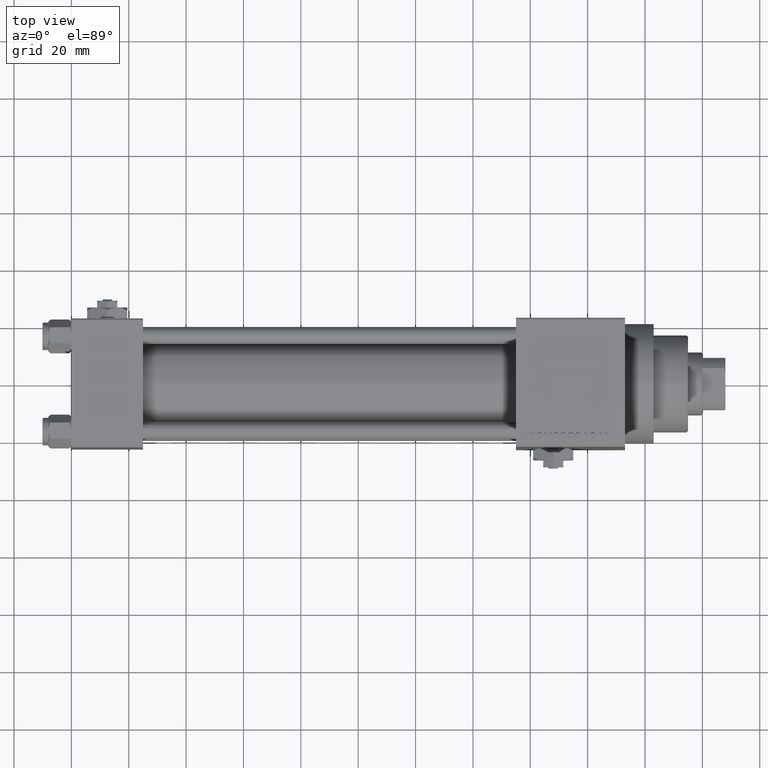
[diagram: clean part render]
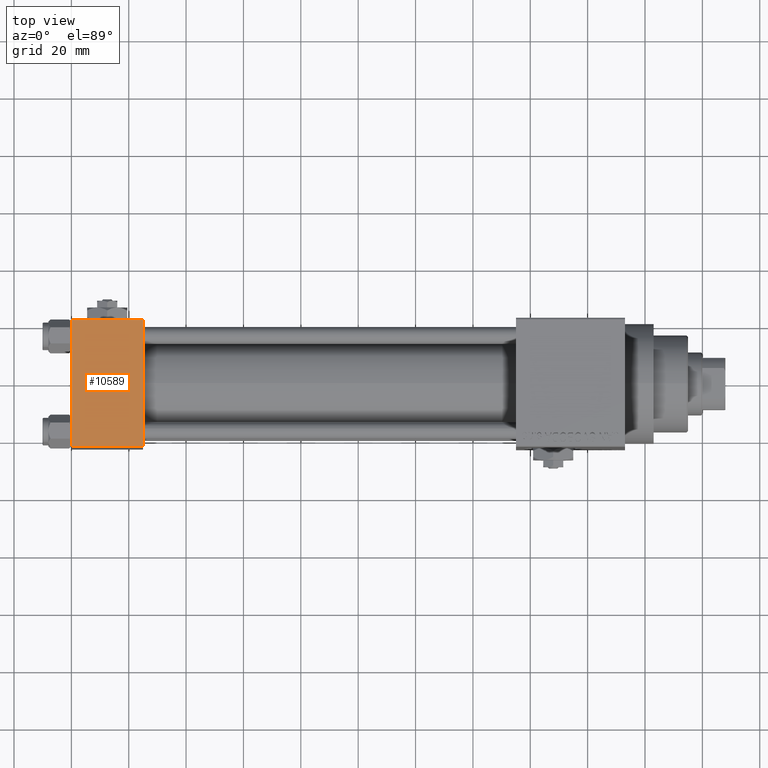
[diagram: same view with one face highlighted and labeled with its STEP entity id]
A machine part, top view. The second image highlights one B-rep face of the part: STEP entity #10589.
In plain terms, the highlighted planar face has unit normal (0, 0, -1).
Its self-contained STEP definition (entity closure, byte-faithful):
#768 = EDGE_CURVE ( 'NONE', #32479, #15750, #32018, .T. ) ;
#1142 = EDGE_CURVE ( 'NONE', #6852, #32479, #45748, .T. ) ;
#3124 = ORIENTED_EDGE ( 'NONE', *, *, #42754, .T. ) ;
#5520 = DIRECTION ( 'NONE',  ( 0.000000000000000000, 7.709882115452476934E-17, -1.000000000000000000 ) ) ;
#5585 = LINE ( 'NONE', #46124, #7551 ) ;
#6852 = VERTEX_POINT ( 'NONE', #38096 ) ;
#7551 = VECTOR ( 'NONE', #27962, 1000.000000000000000 ) ;
#10589 = ADVANCED_FACE ( 'NONE', ( #12899 ), #27888, .F. ) ;
#12899 = FACE_OUTER_BOUND ( 'NONE', #36052, .T. ) ;
#14513 = VECTOR ( 'NONE', #35951, 1000.000000000000000 ) ;
#14786 = ORIENTED_EDGE ( 'NONE', *, *, #16016, .F. ) ;
#15750 = VERTEX_POINT ( 'NONE', #46380 ) ;
#16016 = EDGE_CURVE ( 'NONE', #42612, #15750, #23985, .T. ) ;
#23985 = LINE ( 'NONE', #27665, #44344 ) ;
#25642 = CARTESIAN_POINT ( 'NONE',  ( 0.000000000000000000, -21.99999999999997868, 22.50000000000000000 ) ) ;
#27665 = CARTESIAN_POINT ( 'NONE',  ( 25.00000000000000000, 22.50000000000000000, 22.50000000000000355 ) ) ;
#27888 = PLANE ( 'NONE',  #37227 ) ;
#27962 = DIRECTION ( 'NONE',  ( -1.000000000000000000, 0.000000000000000000, 0.000000000000000000 ) ) ;
#28580 = CARTESIAN_POINT ( 'NONE',  ( 25.00000000000000000, -21.99999999999999289, 22.50000000000000000 ) ) ;
#28613 = DIRECTION ( 'NONE',  ( 0.000000000000000000, 1.000000000000000000, 7.709882115452476934E-17 ) ) ;
#30845 = DIRECTION ( 'NONE',  ( 0.000000000000000000, -1.000000000000000000, -7.709882115452476934E-17 ) ) ;
#32018 = LINE ( 'NONE', #28580, #14513 ) ;
#32479 = VERTEX_POINT ( 'NONE', #25642 ) ;
#33522 = ORIENTED_EDGE ( 'NONE', *, *, #768, .T. ) ;
#35951 = DIRECTION ( 'NONE',  ( 1.000000000000000000, 0.000000000000000000, 0.000000000000000000 ) ) ;
#36052 = EDGE_LOOP ( 'NONE', ( #45464, #33522, #14786, #3124 ) ) ;
#36824 = CARTESIAN_POINT ( 'NONE',  ( 25.00000000000000000, 21.99999999999999289, 22.50000000000000355 ) ) ;
#37227 = AXIS2_PLACEMENT_3D ( 'NONE', #39177, #5520, #28613 ) ;
#38096 = CARTESIAN_POINT ( 'NONE',  ( 0.000000000000000000, 21.99999999999999289, 22.50000000000000355 ) ) ;
#38142 = DIRECTION ( 'NONE',  ( 0.000000000000000000, -1.000000000000000000, -7.709882115452476934E-17 ) ) ;
#39177 = CARTESIAN_POINT ( 'NONE',  ( 25.00000000000000000, 22.50000000000000000, 22.50000000000000355 ) ) ;
#41192 = VECTOR ( 'NONE', #38142, 1000.000000000000000 ) ;
#42612 = VERTEX_POINT ( 'NONE', #36824 ) ;
#42754 = EDGE_CURVE ( 'NONE', #42612, #6852, #5585, .T. ) ;
#44344 = VECTOR ( 'NONE', #30845, 1000.000000000000000 ) ;
#45464 = ORIENTED_EDGE ( 'NONE', *, *, #1142, .T. ) ;
#45748 = LINE ( 'NONE', #46242, #41192 ) ;
#46124 = CARTESIAN_POINT ( 'NONE',  ( 0.000000000000000000, 21.99999999999999289, 22.50000000000000355 ) ) ;
#46242 = CARTESIAN_POINT ( 'NONE',  ( 0.000000000000000000, 22.50000000000000000, 22.50000000000000355 ) ) ;
#46380 = CARTESIAN_POINT ( 'NONE',  ( 25.00000000000000000, -21.99999999999997868, 22.50000000000000000 ) ) ;